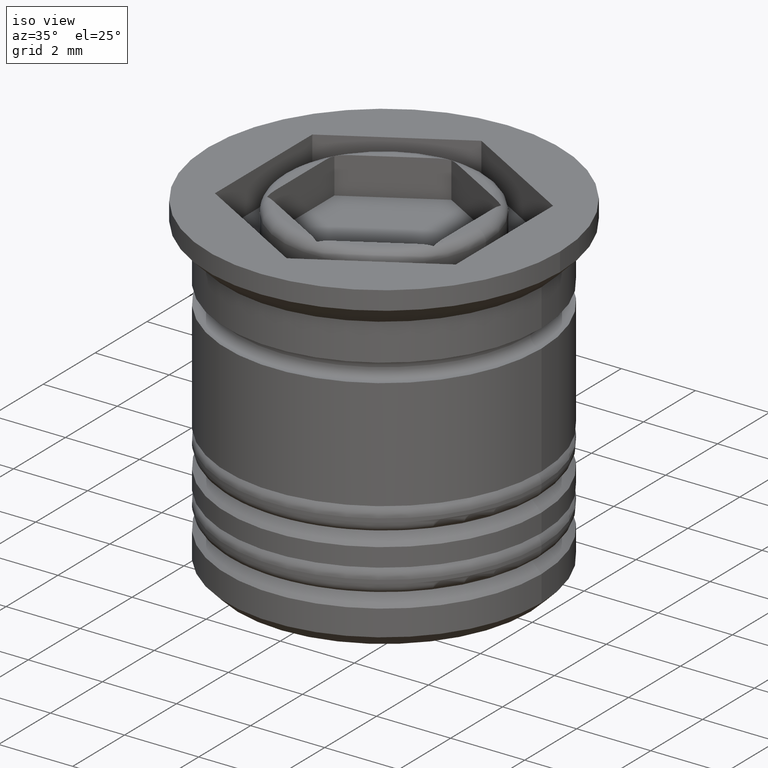
[diagram: clean part render]
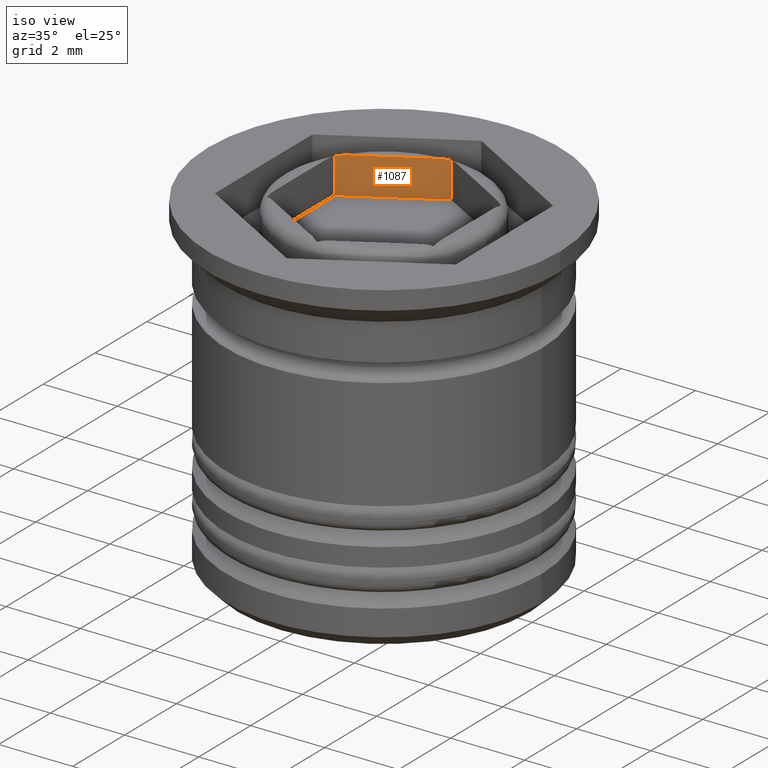
[diagram: same view with one face highlighted and labeled with its STEP entity id]
A machine part, iso view. The second image highlights one B-rep face of the part: STEP entity #1087.
In plain terms, the highlighted planar face has unit normal (-0.5, 0.866, 0).
Its self-contained STEP definition (entity closure, byte-faithful):
#20 = CARTESIAN_POINT ( 'NONE',  ( 0.000000000000000000, 2.598076211353315568, -7.873863542433759299 ) ) ;
#37 = LINE ( 'NONE', #1292, #1646 ) ;
#90 = LINE ( 'NONE', #277, #1696 ) ;
#109 = VERTEX_POINT ( 'NONE', #723 ) ;
#122 = CARTESIAN_POINT ( 'NONE',  ( 0.000000000000000000, 2.598076211353315568, -1.000000000000000000 ) ) ;
#185 = CARTESIAN_POINT ( 'NONE',  ( -2.249999999999999556, 1.299038105676657340, -1.000000000000000000 ) ) ;
#201 = EDGE_CURVE ( 'NONE', #1841, #109, #295, .T. ) ;
#235 = PLANE ( 'NONE',  #608 ) ;
#277 = CARTESIAN_POINT ( 'NONE',  ( 0.000000000000000000, 2.598076211353315568, -7.873863542433759299 ) ) ;
#295 = B_SPLINE_CURVE_WITH_KNOTS ( 'NONE', 3,
 ( #1333, #928, #1042, #403 ),
 .UNSPECIFIED., .F., .F.,
 ( 4, 4 ),
 ( 0.000000000000000000, 0.0003318128588590306210 ),
 .UNSPECIFIED. ) ;
#349 = ORIENTED_EDGE ( 'NONE', *, *, #865, .T. ) ;
#403 = CARTESIAN_POINT ( 'NONE',  ( -2.249999999999999556, 1.299038105676657340, -0.03909113539159181361 ) ) ;
#477 = VECTOR ( 'NONE', #1649, 1000.000000000000000 ) ;
#513 = FACE_OUTER_BOUND ( 'NONE', #1448, .T. ) ;
#596 = LINE ( 'NONE', #630, #812 ) ;
#603 = DIRECTION ( 'NONE',  ( -0.8660254037844385966, -0.5000000000000001110, 0.000000000000000000 ) ) ;
#608 = AXIS2_PLACEMENT_3D ( 'NONE', #20, #1450, #1789 ) ;
#630 = CARTESIAN_POINT ( 'NONE',  ( 0.000000000000000000, 2.598076211353315568, 0.000000000000000000 ) ) ;
#651 = EDGE_CURVE ( 'NONE', #688, #109, #1313, .T. ) ;
#688 = VERTEX_POINT ( 'NONE', #185 ) ;
#721 = B_SPLINE_CURVE_WITH_KNOTS ( 'NONE', 3,
 ( #943, #786, #1111, #1736 ),
 .UNSPECIFIED., .F., .F.,
 ( 4, 4 ),
 ( 7.807858345385552951E-20, 0.0003318128588590312173 ),
 .UNSPECIFIED. ) ;
#723 = CARTESIAN_POINT ( 'NONE',  ( -2.249999999999999556, 1.299038105676657340, -0.03909113539159181361 ) ) ;
#786 = CARTESIAN_POINT ( 'NONE',  ( -0.09331629800900279048, 2.544200021578038484, -0.008514243816639925286 ) ) ;
#812 = VECTOR ( 'NONE', #603, 1000.000000000000000 ) ;
#831 = CARTESIAN_POINT ( 'NONE',  ( -1.964642781187333931, 1.463789172773352742, 0.000000000000000000 ) ) ;
#865 = EDGE_CURVE ( 'NONE', #1218, #1322, #90, .T. ) ;
#928 = CARTESIAN_POINT ( 'NONE',  ( -2.061100629496125158, 1.408099208086819987, 0.000000000000000000 ) ) ;
#943 = CARTESIAN_POINT ( 'NONE',  ( 0.000000000000000000, 2.598076211353315568, -0.03909113539159181361 ) ) ;
#972 = CARTESIAN_POINT ( 'NONE',  ( 0.000000000000000000, 2.598076211353315568, -0.03909113539159181361 ) ) ;
#1029 = EDGE_CURVE ( 'NONE', #1653, #1841, #596, .T. ) ;
#1042 = CARTESIAN_POINT ( 'NONE',  ( -2.156683701990996127, 1.352914295451934867, -0.008514243816631204831 ) ) ;
#1087 = ADVANCED_FACE ( 'NONE', ( #513 ), #235, .F. ) ;
#1111 = CARTESIAN_POINT ( 'NONE',  ( -0.1888993705038740090, 2.489015108943152921, 5.673802033703191998E-17 ) ) ;
#1202 = ORIENTED_EDGE ( 'NONE', *, *, #651, .F. ) ;
#1218 = VERTEX_POINT ( 'NONE', #122 ) ;
#1292 = CARTESIAN_POINT ( 'NONE',  ( 0.000000000000000000, 2.598076211353315568, -1.000000000000000000 ) ) ;
#1313 = LINE ( 'NONE', #1619, #477 ) ;
#1322 = VERTEX_POINT ( 'NONE', #972 ) ;
#1333 = CARTESIAN_POINT ( 'NONE',  ( -1.964642781187333931, 1.463789172773352742, 0.000000000000000000 ) ) ;
#1348 = ORIENTED_EDGE ( 'NONE', *, *, #1878, .T. ) ;
#1392 = EDGE_CURVE ( 'NONE', #1322, #1653, #721, .T. ) ;
#1423 = CARTESIAN_POINT ( 'NONE',  ( -0.2853572188126657916, 2.433325144256619943, 0.000000000000000000 ) ) ;
#1448 = EDGE_LOOP ( 'NONE', ( #349, #1998, #2024, #1884, #1202, #1348 ) ) ;
#1450 = DIRECTION ( 'NONE',  ( -0.5000000000000001110, 0.8660254037844385966, 0.000000000000000000 ) ) ;
#1619 = CARTESIAN_POINT ( 'NONE',  ( -2.249999999999999556, 1.299038105676657340, -7.873863542433759299 ) ) ;
#1646 = VECTOR ( 'NONE', #1920, 1000.000000000000000 ) ;
#1649 = DIRECTION ( 'NONE',  ( -0.000000000000000000, -0.000000000000000000, 1.000000000000000000 ) ) ;
#1653 = VERTEX_POINT ( 'NONE', #1423 ) ;
#1696 = VECTOR ( 'NONE', #2002, 1000.000000000000000 ) ;
#1736 = CARTESIAN_POINT ( 'NONE',  ( -0.2853572188126657916, 2.433325144256619943, 0.000000000000000000 ) ) ;
#1789 = DIRECTION ( 'NONE',  ( -0.8660254037844385966, -0.5000000000000001110, 0.000000000000000000 ) ) ;
#1841 = VERTEX_POINT ( 'NONE', #831 ) ;
#1878 = EDGE_CURVE ( 'NONE', #688, #1218, #37, .T. ) ;
#1884 = ORIENTED_EDGE ( 'NONE', *, *, #201, .T. ) ;
#1920 = DIRECTION ( 'NONE',  ( 0.8660254037844385966, 0.5000000000000001110, 0.000000000000000000 ) ) ;
#1998 = ORIENTED_EDGE ( 'NONE', *, *, #1392, .T. ) ;
#2002 = DIRECTION ( 'NONE',  ( -0.000000000000000000, -0.000000000000000000, 1.000000000000000000 ) ) ;
#2024 = ORIENTED_EDGE ( 'NONE', *, *, #1029, .T. ) ;